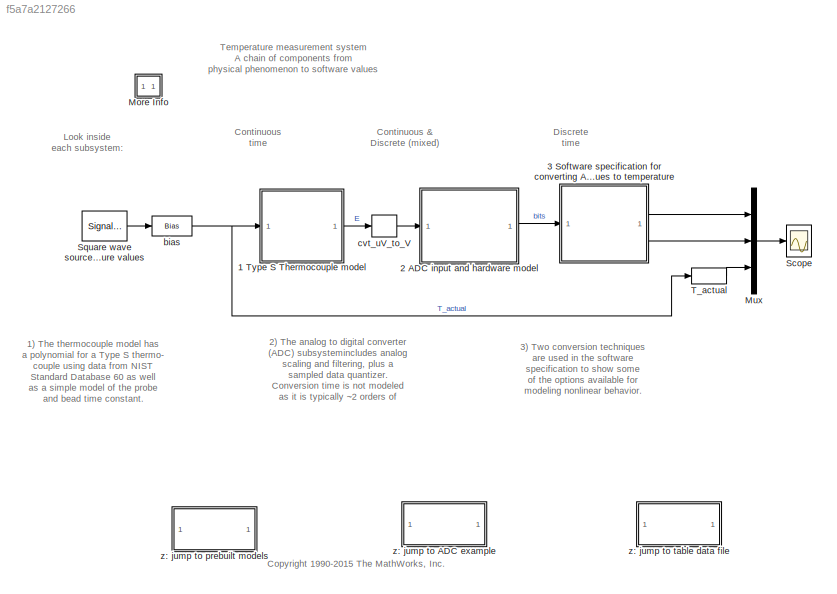
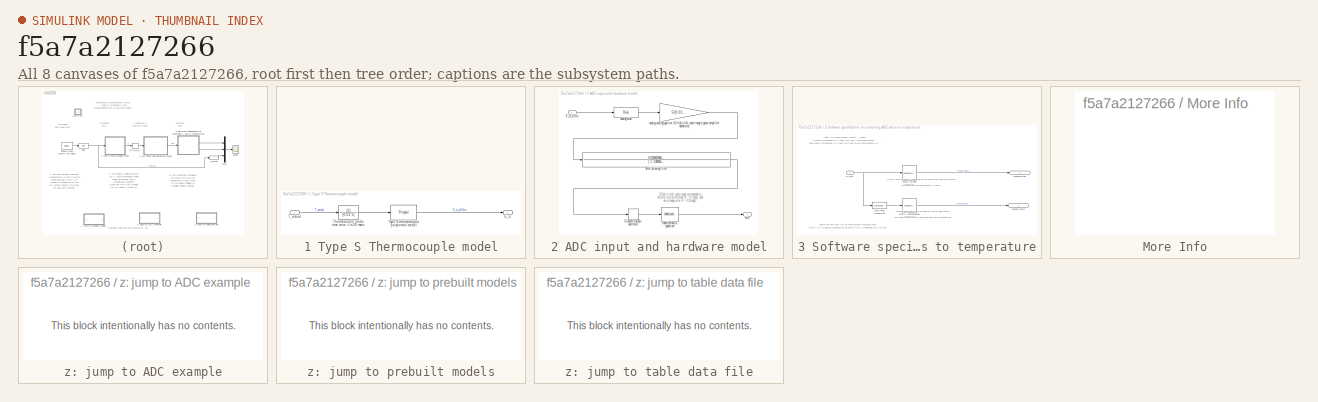
[diagram: thumbnail index - all 8 canvases of the model, root first then tree order]
MODEL slx_f5a7a2127266
KIND model
CONFIG AbsTol = auto
CONFIG EnableMultiTasking = off
CONFIG FixedStep = 0.005
CONFIG MaxStep = auto
CONFIG MinStep = auto
CONFIG RelTol = 1e-3
CONFIG SampleTimeConstraint = Unconstrained
CONFIG SolverName = ode3
CONFIG StartFcn = set_param('sldemo_tc/Scope','Open','on')
CONFIG StartTime = 0.0
CONFIG StopTime = 10.0
WORKSPACE source: mxarray member
WORKSPACE TypeS_E_Volts = [-0.000236 -0.000232 -0.000228 -0.000224 -0.000219 -0.000215 -0.000211 -0.000207 -0.000203 -0.000199 -0.000194 -0.00019 ... (1816 elements, 1816x1)]
WORKSPACE TypeS_T_degC = [-50 -49 -48 -47 -46 -45 -44 -43 -42 -41 -40 -39 ... (1816 elements, 1816x1)]
WORKSPACE TypeS_bits_bp = [0 50 100 150 200 250 300 350 400 450 500 550 ... (83 elements, 83x1)]
WORKSPACE TypeS_tdegc_interp = [-50 -1.05395507812 38.4789352417 73.4326858521 105.529296875 135.797668457 164.757202148 192.63710022 219.712234497 246.231826782 272.095336914 297.6043396 ... (83 elements, 83x1)]
WORKSPACE TypeS_tdegc_vs_bits = [-50 -48.8466186523 -47.6932373047 -46.6318855286 -45.6364746094 -44.4830932617 -43.3297119141 -42.1763305664 -41.0229492188 -40.0956535339 -38.9661865234 -37.8502426147 ... (4096 elements, 4096x1)]
WORKSPACE e_vs_counts = [-0.236 -0.231386474609 -0.226772949219 -0.222159423828 -0.217545898437 -0.212932373047 -0.208318847656 -0.203705322266 -0.199091796875 -0.194478271484 -0.189864746094 -0.185251220703 ... (4096 elements, 4096x1)]
BLOCK [SubSystem] 1 Type S Thermocouple model
BLOCK [Outport] 1 Type S Thermocouple model/E_tc
  Unit = uV
  VectorParamsAs1DForOutWhenUnconnected = off
BLOCK [Inport] 1 Type S Thermocouple model/T_actual
  Unit = degC
BLOCK [TransferFcn] 1 Type S Thermocouple model/Thermocouple probe time constant is 30 msec
  Denominator = [0.03 1]
BLOCK [Polyval] 1 Type S Thermocouple model/Type S thermocouple polynomial model
  AttributesFormatString = %<Description>
  Coefs = [ +2.71443176145e-021, -1.25068871393e-017, +2.55744251786e-014, -3.31465196389e-011, +3.22028823036e-008, -2.32477968689e-005, +1.25934289740e-002, +5.40313308631e+000, +0.00000000000e+000 ]
  Description = 0 deg C ice reference         \n      microVolts = f(Temperature degC)   \n(Segment 1) input range: -50 to 1063 degC
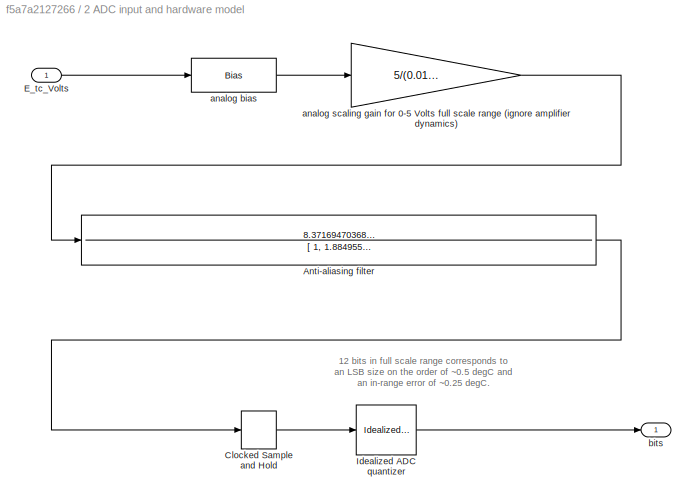
BLOCK [SubSystem] 2 ADC input and hardware model
BLOCK [TransferFcn] 2 ADC input and hardware model/Anti-aliasing filter
  AttributesFormatString = %<Description>
  Denominator = [ 1, 1.884955592153875e+002, 1.776528792196083e+004, 8.371694703680943e+005 ]
  Description = Designed using Signal Processing Toolbox command:\n>> [num,den] = butter(3,15*2*pi,'low','s')
  Numerator = 8.371694703680943e+005
BLOCK [ZeroOrderHold] 2 ADC input and hardware model/Clocked Sample and Hold
  AttributesFormatString = (%<SampleTime> sec)
  SampleTime = 0.020
BLOCK [Inport] 2 ADC input and hardware model/E_tc_Volts
  Unit = V
BLOCK [Reference] 2 ADC input and hardware model/Idealized ADC quantizer  REF=simulink_extras/Additional
Discrete/Idealized ADC quantizer
  AttributesFormatString = (settings: %<NumberOfConverterBits>-bit converter\nVmin: %<Vmin>, Vmax: %<Vmax>)
  SourceBlock = simulink_extras/Additional\nDiscrete/Idealized ADC quantizer
  SourceProductName = Simulink
  SourceType = IdealADC
BLOCK [Bias] 2 ADC input and hardware model/analog bias
  Bias = 0.000236
  SaturateOnIntegerOverflow = off
BLOCK [Gain] 2 ADC input and hardware model/analog scaling gain for 0-5 Volts full scale range (ignore amplifier dynamics)
  Gain = 5/(0.018661+0.000236)
BLOCK [Outport] 2 ADC input and hardware model/bits
  Unit = count
  VectorParamsAs1DForOutWhenUnconnected = off
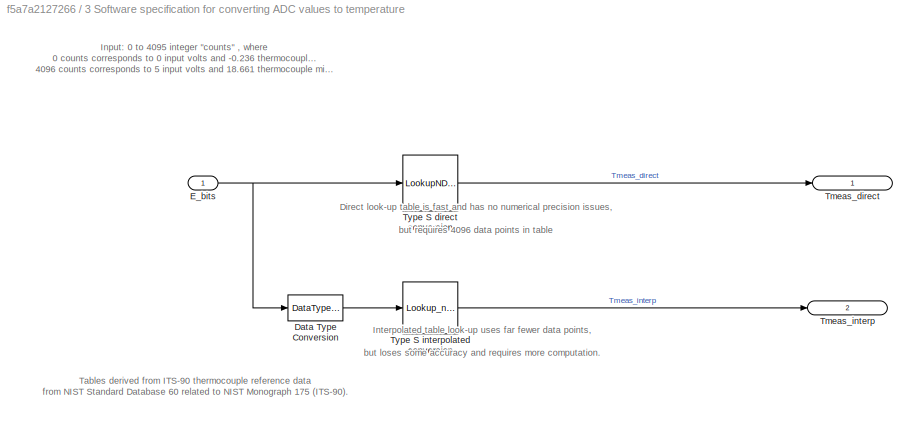
BLOCK [SubSystem] 3 Software specification for converting ADC values to temperature
BLOCK [DataTypeConversion] 3 Software specification for converting ADC values to temperature/Data Type Conversion
  OutDataTypeStr = single
  RndMeth = Floor
  SaturateOnIntegerOverflow = off
BLOCK [Inport] 3 Software specification for converting ADC values to temperature/E_bits
  OutDataTypeStr = uint16
  SignalType = real
  Unit = count
BLOCK [Outport] 3 Software specification for converting ADC values to temperature/Tmeas_direct
  IconDisplay = Port number and signal name
  Unit = degC
  VectorParamsAs1DForOutWhenUnconnected = off
BLOCK [Outport] 3 Software specification for converting ADC values to temperature/Tmeas_interp
  IconDisplay = Port number and signal name
  Port = 2
  Unit = degC
  VectorParamsAs1DForOutWhenUnconnected = off
BLOCK [LookupNDDirect] 3 Software specification for converting ADC values to temperature/Type S direct conversion
  AttributesFormatString = (%<mxTable>)
  NumberOfTableDimensions = 1
  Table = TypeS_tdegc_vs_bits
BLOCK [Lookup_n-D] 3 Software specification for converting ADC values to temperature/Type S interpolated conversion
  AttributesFormatString = (%<tableData>)
  BeginIndexSearchUsingPreviousIndexResult = on
  BreakpointsForDimension1 = TypeS_bits_bp
  DiagnosticForOutOfRangeInput = Warning
  ExtrapMethod = Clip
  IndexSearchMethod = Linear search
  InputPortMap = u0
  InternalRulePriority = Speed
  NumberOfTableDimensions = 1
  RndMeth = Simplest
  Table = TypeS_tdegc_interp
BLOCK [SubSystem] More Info
  OpenFcn = showExample('simulink_general/sldemo_tc_scriptExample')
BLOCK [Mux] Mux
  DisplayOption = bar
  Inputs = 3
BLOCK [Scope] Scope
  Floating = off
  NumInputPorts = 1
  ScopeSpecificationString = C++SS(StrPVP('Location','[563, 413, 1167, 942]'),StrPVP('Open','off'),MxPVP('AxesTitles',54,'struct(''axes1'',''%<SignalLabel>'')'),StrPVP('ShowLegends','off'),StrPVP('TimeRange','10'),StrPVP('YMin','-25'),StrPVP('YMax','225'),StrPVP('DataFormat','StructureWithTime'),StrPVP('BlockParamSampleTime','0'),StrPVP('LimitDataPoints','on'),StrPVP('Decimation','1'),StrPVP('BlockParamSampleInput','off'))
BLOCK [SignalGenerator] Square wave source for generating temperature values
  Amplitude = 100
  WaveForm = square
BLOCK [DataTypeConversion] T_actual
  OutDataTypeStr = single
  RndMeth = Floor
  SaturateOnIntegerOverflow = off
BLOCK [Bias] bias
  Bias = 100
  SaturateOnIntegerOverflow = off
BLOCK [UnitConversion] cvt_uV_to_V
BLOCK [SubSystem] z: jump to ADC example
  OpenFcn = open_system('sldemo_adc_quantize','force')
BLOCK [SubSystem] z: jump to prebuilt models
  OpenFcn = open_system('sldemo_tc_blocks','force')
BLOCK [SubSystem] z: jump to table data file
  OpenFcn = edit sldemo_create_tc_tabledata.m
ANNOTATION (root): 1) The thermocouple model has a polynomial for a Type S thermo- couple using data from NIST Standard Database 60 as well as a simple model of the probe and bead time constant.
ANNOTATION (root): 2) The analog to digital converter (ADC) subsystemincludes analog scaling and filtering, plus a sampled data quantizer. Conversion time is not modeled as it is typically ~2 orders of magnitude smaller in time scale compared to the rest of the simulation.
ANNOTATION (root): 3) Two conversion techniques are used in the software specification to show some of the options available for modeling nonlinear behavior.
ANNOTATION (root): Continuous time
ANNOTATION (root): Continuous & Discrete (mixed)
ANNOTATION (root): <copyright redacted>
ANNOTATION (root): Discrete time
ANNOTATION (root): Look inside each subsystem:
ANNOTATION (root): Temperature measurement system A chain of components from physical phenomenon to software values
ANNOTATION 2 ADC input and hardware model: 12 bits in full scale range corresponds to an LSB size on the order of ~0.5 degC and an in-range error of ~0.25 degC.
ANNOTATION 3 Software specification for converting ADC values to temperature: Direct look-up table is fast and has no numerical precision issues, but requires 4096 data points in table
ANNOTATION 3 Software specification for converting ADC values to temperature: Input: 0 to 4095 integer "counts" , where 0 counts corresponds to 0 input volts and -0.236 thermocouple millivolts 4096 counts corresponds to 5 input volts and 18.661 thermocouple millivolts
ANNOTATION 3 Software specification for converting ADC values to temperature: Interpolated table look-up uses far fewer data points, but loses some accuracy and requires more computation.
ANNOTATION 3 Software specification for converting ADC values to temperature: Tables derived from ITS-90 thermocouple reference data from NIST Standard Database 60 related to NIST Monograph 175 (ITS-90).
ANNOTATION z: jump to ADC example: This block intentionally has no contents.
ANNOTATION z: jump to prebuilt models: This block intentionally has no contents.
ANNOTATION z: jump to table data file: This block intentionally has no contents.
LINE 1 Type S Thermocouple model/T_actual:1 -> 1 Type S Thermocouple model/Thermocouple probe time constant is 30 msec:1
LINE 1 Type S Thermocouple model/Thermocouple probe time constant is 30 msec:1 -> 1 Type S Thermocouple model/Type S thermocouple polynomial model:1
LINE 1 Type S Thermocouple model/Type S thermocouple polynomial model:1 -> 1 Type S Thermocouple model/E_tc:1
LINE 1 Type S Thermocouple model:1 -> cvt_uV_to_V:1
LINE 2 ADC input and hardware model/Anti-aliasing filter:1 -> 2 ADC input and hardware model/Clocked Sample and Hold:1
LINE 2 ADC input and hardware model/Clocked Sample and Hold:1 -> 2 ADC input and hardware model/Idealized ADC quantizer:1
LINE 2 ADC input and hardware model/E_tc_Volts:1 -> 2 ADC input and hardware model/analog bias:1
LINE 2 ADC input and hardware model/Idealized ADC quantizer:1 -> 2 ADC input and hardware model/bits:1
LINE 2 ADC input and hardware model/analog bias:1 -> 2 ADC input and hardware model/analog scaling gain for 0-5 Volts full scale range (ignore amplifier dynamics):1
LINE 2 ADC input and hardware model/analog scaling gain for 0-5 Volts full scale range (ignore amplifier dynamics):1 -> 2 ADC input and hardware model/Anti-aliasing filter:1
LINE 2 ADC input and hardware model:1 -> 3 Software specification for converting ADC values to temperature:1
LINE 3 Software specification for converting ADC values to temperature/Data Type Conversion:1 -> 3 Software specification for converting ADC values to temperature/Type S interpolated conversion:1
NET 3 Software specification for converting ADC values to temperature/E_bits:1 -> 3 Software specification for converting ADC values to temperature/Data Type Conversion:1, 3 Software specification for converting ADC values to temperature/Type S direct conversion:1
LINE 3 Software specification for converting ADC values to temperature/Type S direct conversion:1 -> 3 Software specification for converting ADC values to temperature/Tmeas_direct:1
LINE 3 Software specification for converting ADC values to temperature/Type S interpolated conversion:1 -> 3 Software specification for converting ADC values to temperature/Tmeas_interp:1
LINE 3 Software specification for converting ADC values to temperature:1 -> Mux:1
LINE 3 Software specification for converting ADC values to temperature:2 -> Mux:2
LINE Mux:1 -> Scope:1
LINE Square wave source for generating temperature values:1 -> bias:1
LINE T_actual:1 -> Mux:3
NET bias:1 -> 1 Type S Thermocouple model:1, T_actual:1
LINE cvt_uV_to_V:1 -> 2 ADC input and hardware model:1
note: NET lines group one-source signal fan-out (src -> all destinations, sorted); 1:1 wires keep LINE
